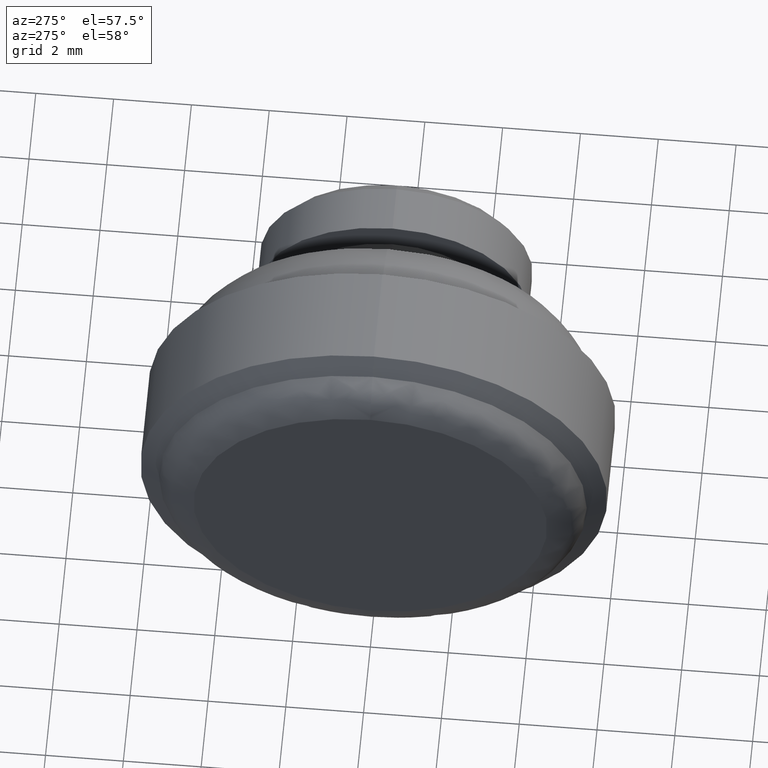
[diagram: clean part render]
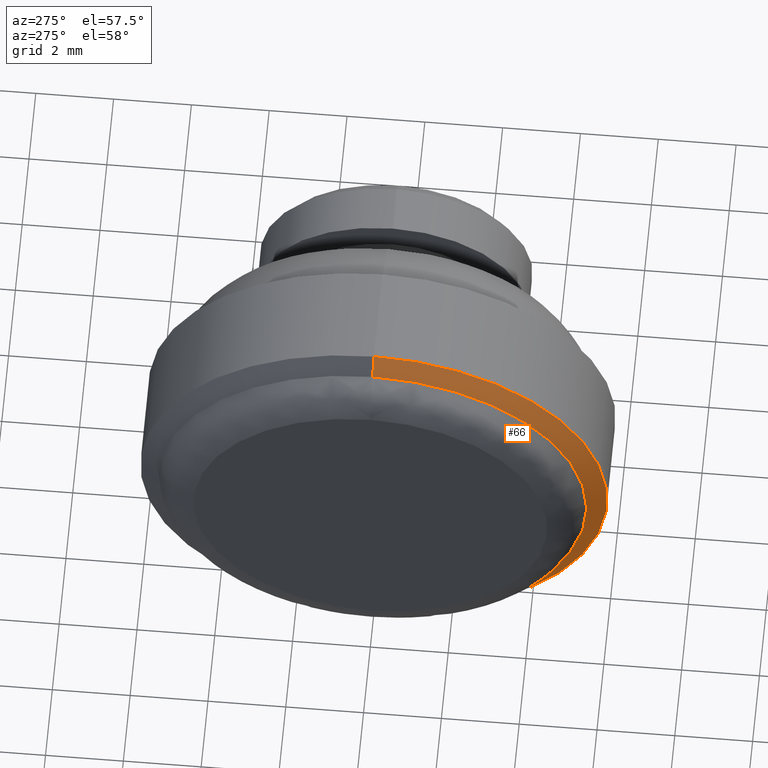
[diagram: same view with one face highlighted and labeled with its STEP entity id]
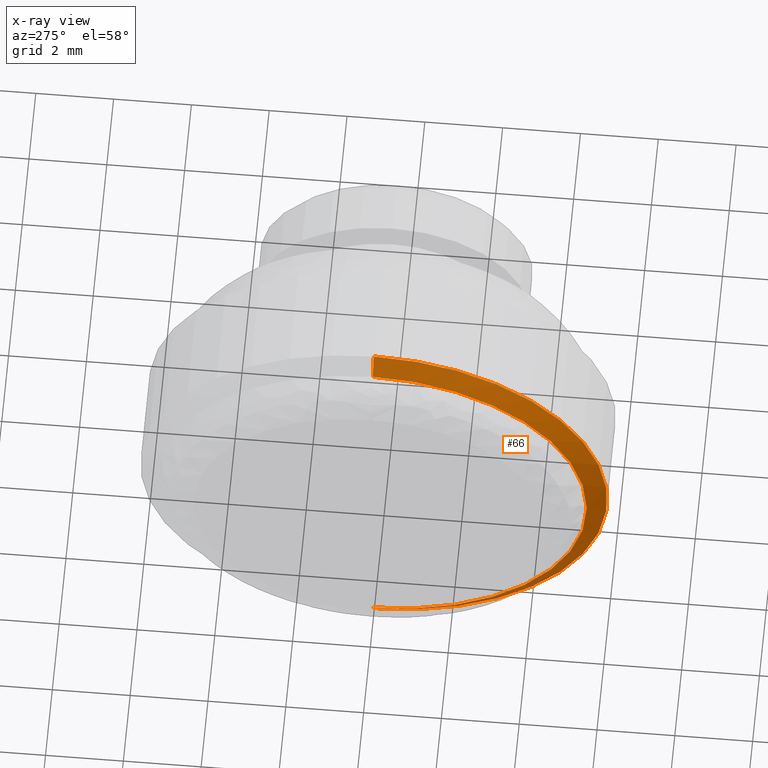
[diagram: x-ray of the same camera — body ghosted, the highlighted face saturated]
A machine part, auxiliary view. The second image highlights one B-rep face of the part: STEP entity #66.
The next image is the same camera in x-ray: the body ghosted, the highlighted face saturated — about 0% of this face is hidden behind the body in this view.
In plain terms, the highlighted face is a freeform B-spline surface patch.
Its self-contained STEP definition (entity closure, byte-faithful):
#66=ADVANCED_FACE('',(#334),#333,.T.);
#333=( BOUNDED_SURFACE() B_SPLINE_SURFACE( 2,1,((#608,#609),(#610,#611),(#612,#613),(#614,#615),(#616,#617)), .UNSPECIFIED.,.F.,.F.,.F.) B_SPLINE_SURFACE_WITH_KNOTS((3,2,3),(2,2),(0.00000000000E+00,5.00000000000E-01,1.00000000000E+00),(0.00000000000E+00,1.00000000000E+00), .UNSPECIFIED. ) GEOMETRIC_REPRESENTATION_ITEM() RATIONAL_B_SPLINE_SURFACE(((1.00000000000E+00,1.00000000000E+00),(7.07106781187E-01,7.07106781187E-01),(1.00000000000E+00,1.00000000000E+00),(7.07106781187E-01,7.07106781187E-01),(1.00000000000E+00,1.00000000000E+00))) REPRESENTATION_ITEM('') SURFACE() );
#334=FACE_OUTER_BOUND('',#618,.T.);
#608=CARTESIAN_POINT('',(-1.06003466067E+01,0.00000000000E+00,0.00000000000E+00));
#609=CARTESIAN_POINT('',(-5.50868760625E+00,-2.07829453497E-15,8.48528137424E+00));
#610=CARTESIAN_POINT('',(-1.06003466067E+01,0.00000000000E+00,0.00000000000E+00));
#611=CARTESIAN_POINT('',(-5.50868760625E+00,-8.48528137424E+00,8.48528137424E+00));
#612=CARTESIAN_POINT('',(-1.06003466067E+01,0.00000000000E+00,0.00000000000E+00));
#613=CARTESIAN_POINT('',(-5.50868760625E+00,-8.48528137424E+00,-1.55872090122E-15));
#614=CARTESIAN_POINT('',(-1.06003466067E+01,0.00000000000E+00,0.00000000000E+00));
#615=CARTESIAN_POINT('',(-5.50868760625E+00,-8.48528137424E+00,-8.48528137424E+00));
#616=CARTESIAN_POINT('',(-1.06003466067E+01,0.00000000000E+00,0.00000000000E+00));
#617=CARTESIAN_POINT('',(-5.50868760625E+00,1.03914726748E-15,-8.48528137424E+00));
#618=EDGE_LOOP('',(#782,#783,#784,#785));
#782=ORIENTED_EDGE('',*,*,#849,.T.);
#783=ORIENTED_EDGE('',*,*,#850,.F.);
#784=ORIENTED_EDGE('',*,*,#851,.F.);
#785=ORIENTED_EDGE('',*,*,#852,.T.);
#849=EDGE_CURVE('',#1173,#1180,#1193,.T.);
#850=EDGE_CURVE('',#1199,#1180,#1200,.T.);
#851=EDGE_CURVE('',#1206,#1199,#1207,.T.);
#852=EDGE_CURVE('',#1206,#1173,#1213,.T.);
#1173=VERTEX_POINT('',#1422);
#1180=VERTEX_POINT('',#1425);
#1193=CIRCLE('',#1435,6.00000000000E+00);
#1199=VERTEX_POINT('',#1436);
#1200=(BOUNDED_CURVE() B_SPLINE_CURVE(1,(#1437,#1438),.UNSPECIFIED.,.F.,.F.) B_SPLINE_CURVE_WITH_KNOTS((2,2),(6.48185594214E-01,7.07106779542E-01),.UNSPECIFIED.) CURVE() GEOMETRIC_REPRESENTATION_ITEM() RATIONAL_B_SPLINE_CURVE((1.00000000000E+00,1.00000000000E+00)) REPRESENTATION_ITEM('') );
#1206=VERTEX_POINT('',#1439);
#1207=CIRCLE('',#1443,5.50003712335E+00);
#1213=(BOUNDED_CURVE() B_SPLINE_CURVE(1,(#1444,#1445),.UNSPECIFIED.,.F.,.F.) B_SPLINE_CURVE_WITH_KNOTS((2,2),(6.48185591117E-01,7.07106780095E-01),.UNSPECIFIED.) CURVE() GEOMETRIC_REPRESENTATION_ITEM() RATIONAL_B_SPLINE_CURVE((7.50000000000E-01,7.50000000000E-01)) REPRESENTATION_ITEM('') );
#1422=CARTESIAN_POINT('',(-7.00000000000E+00,-2.96059473233E-16,-6.00000000000E+00));
#1425=CARTESIAN_POINT('',(-7.00000000000E+00,0.00000000000E+00,6.00000000000E+00));
#1432=CARTESIAN_POINT('',(-7.00000000000E+00,0.00000000000E+00,0.00000000000E+00));
#1433=DIRECTION('',(-1.00000000000E+00,0.00000000000E+00,0.00000000000E+00));
#1434=DIRECTION('',(0.00000000000E+00,-1.22460635382E-16,1.00000000000E+00));
#1435=AXIS2_PLACEMENT_3D('',#1432,#1433,#1434);
#1436=CARTESIAN_POINT('',(-7.30000660774E+00,0.00000000000E+00,5.50003712335E+00));
#1437=CARTESIAN_POINT('',(-7.30000659197E+00,-1.34707608794E-15,5.50003714963E+00));
#1438=CARTESIAN_POINT('',(-7.00000000837E+00,-1.46952762117E-15,5.99999998605E+00));
#1439=CARTESIAN_POINT('',(-7.30000660774E+00,2.96059473233E-16,-5.50003712335E+00));
#1440=CARTESIAN_POINT('',(-7.30000660774E+00,0.00000000000E+00,0.00000000000E+00));
#1441=DIRECTION('',(-1.00000000000E+00,0.00000000000E+00,0.00000000000E+00));
#1442=DIRECTION('',(0.00000000000E+00,-1.22460635382E-16,1.00000000000E+00));
#1443=AXIS2_PLACEMENT_3D('',#1440,#1441,#1442);
#1444=CARTESIAN_POINT('',(-7.30000660774E+00,1.34331039264E-15,-5.50003712335E+00));
#1445=CARTESIAN_POINT('',(-7.00000000556E+00,1.46541962584E-15,-5.99999999074E+00));